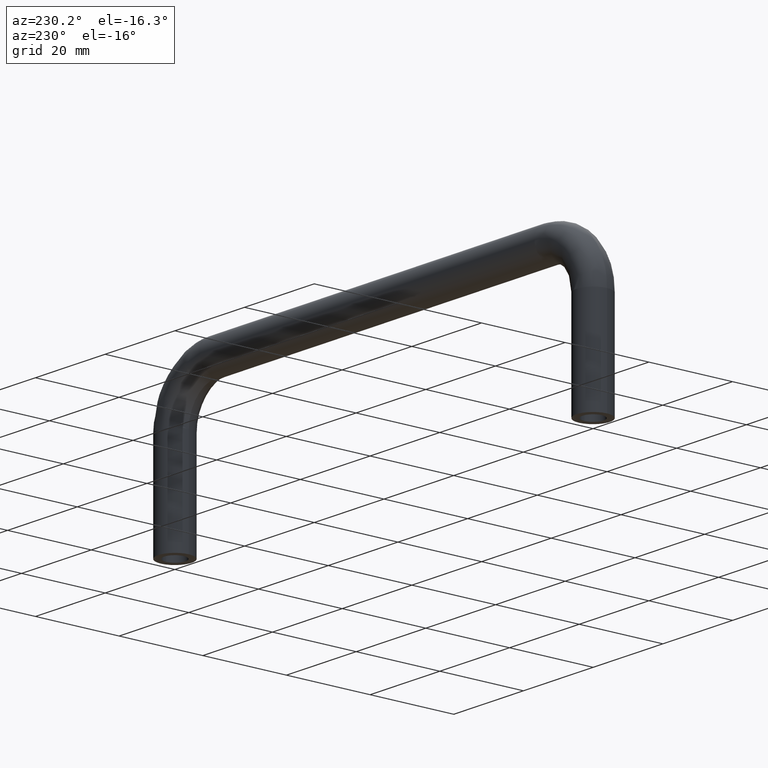
[diagram: clean part render]
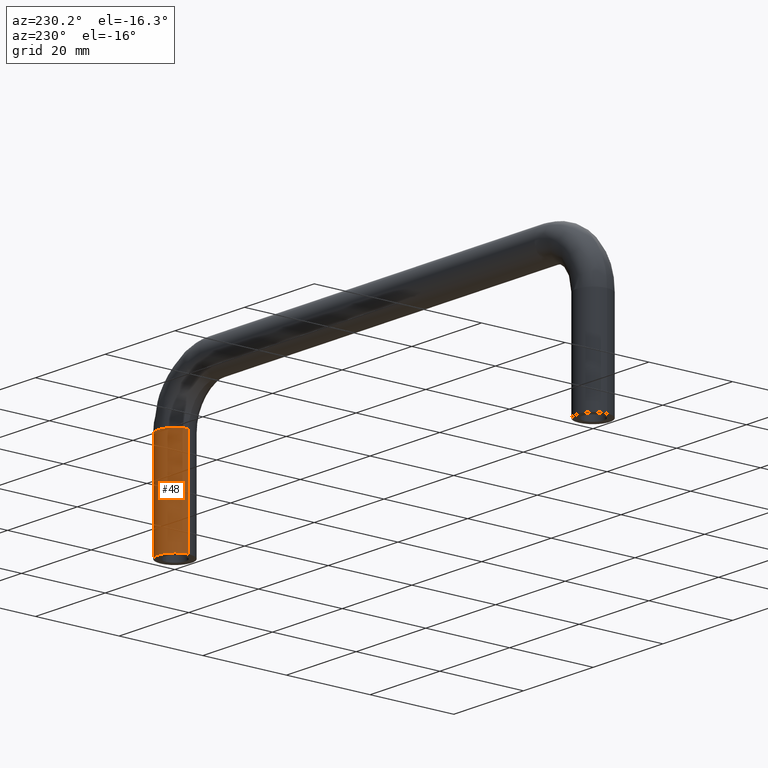
[diagram: same view with one face highlighted and labeled with its STEP entity id]
A machine part, auxiliary view. The second image highlights one B-rep face of the part: STEP entity #48.
In plain terms, the highlighted cylindrical surface (edge-blend (fillet) strip) has radius 4 mm, axis along (0, -0, 1).
Its self-contained STEP definition (entity closure, byte-faithful):
#48=ADVANCED_FACE('',(#141),#140,.T.);
#140=CYLINDRICAL_SURFACE('',#437,4.00000000000E+00);
#141=FACE_OUTER_BOUND('',#438,.T.);
#434=CARTESIAN_POINT('',(5.99999999995E+01,0.00000000000E+00,-2.00000000000E+01));
#435=DIRECTION('',(0.00000000000E+00,-0.00000000000E+00,1.00000000000E+00));
#436=DIRECTION('',(1.00000000000E+00,-0.00000000000E+00,-0.00000000000E+00));
#437=AXIS2_PLACEMENT_3D('',#434,#435,#436);
#438=EDGE_LOOP('',(#512,#513,#514,#515));
#512=ORIENTED_EDGE('',*,*,#562,.F.);
#513=ORIENTED_EDGE('',*,*,#576,.F.);
#514=ORIENTED_EDGE('',*,*,#558,.F.);
#515=ORIENTED_EDGE('',*,*,#577,.T.);
#558=EDGE_CURVE('',#628,#629,#630,.T.);
#562=EDGE_CURVE('',#601,#594,#656,.T.);
#576=EDGE_CURVE('',#629,#601,#750,.T.);
#577=EDGE_CURVE('',#628,#594,#756,.T.);
#594=VERTEX_POINT('',#816);
#601=VERTEX_POINT('',#821);
#628=VERTEX_POINT('',#843);
#629=VERTEX_POINT('',#844);
#630=CIRCLE('',#848,4.00000000000E+00);
#656=CIRCLE('',#866,4.00000000000E+00);
#750=(BOUNDED_CURVE() B_SPLINE_CURVE(1,(#932,#933),.UNSPECIFIED.,.F.,.F.) B_SPLINE_CURVE_WITH_KNOTS((2,2),(8.33333328360E-02,9.16666665505E-01),.UNSPECIFIED.) CURVE() GEOMETRIC_REPRESENTATION_ITEM() RATIONAL_B_SPLINE_CURVE((1.00000000000E+00,1.00000000000E+00)) REPRESENTATION_ITEM('') );
#756=(BOUNDED_CURVE() B_SPLINE_CURVE(1,(#934,#935),.UNSPECIFIED.,.F.,.F.) B_SPLINE_CURVE_WITH_KNOTS((2,2),(8.33333333333E-02,9.16666666667E-01),.UNSPECIFIED.) CURVE() GEOMETRIC_REPRESENTATION_ITEM() RATIONAL_B_SPLINE_CURVE((7.50000000000E-01,7.50000000000E-01)) REPRESENTATION_ITEM('') );
#816=CARTESIAN_POINT('',(5.59999999995E+01,4.44089209850E-16,-8.00000000000E+00));
#821=CARTESIAN_POINT('',(6.39999999995E+01,0.00000000000E+00,-8.00000000000E+00));
#843=CARTESIAN_POINT('',(5.59999999994E+01,-4.89842541529E-16,-3.20000000000E+01));
#844=CARTESIAN_POINT('',(6.39999999994E+01,-1.48029736617E-16,-3.20000000000E+01));
#845=CARTESIAN_POINT('',(5.99999999994E+01,0.00000000000E+00,-3.20000000000E+01));
#846=DIRECTION('',(0.00000000000E+00,0.00000000000E+00,-1.00000000000E+00));
#847=DIRECTION('',(-1.00000000000E+00,-0.00000000000E+00,-0.00000000000E+00));
#848=AXIS2_PLACEMENT_3D('',#845,#846,#847);
#863=CARTESIAN_POINT('',(5.99999999995E+01,0.00000000000E+00,-8.00000000000E+00));
#864=DIRECTION('',(-0.00000000000E+00,0.00000000000E+00,1.00000000000E+00));
#865=DIRECTION('',(-1.00000000000E+00,-0.00000000000E+00,-0.00000000000E+00));
#866=AXIS2_PLACEMENT_3D('',#863,#864,#865);
#932=CARTESIAN_POINT('',(6.39999999995E+01,0.00000000000E+00,-3.20000000143E+01));
#933=CARTESIAN_POINT('',(6.39999999995E+01,0.00000000000E+00,-8.00000003347E+00));
#934=CARTESIAN_POINT('',(5.59999999995E+01,-1.48029736617E-16,-3.20000000000E+01));
#935=CARTESIAN_POINT('',(5.59999999995E+01,-1.48029736617E-16,-8.00000000000E+00));